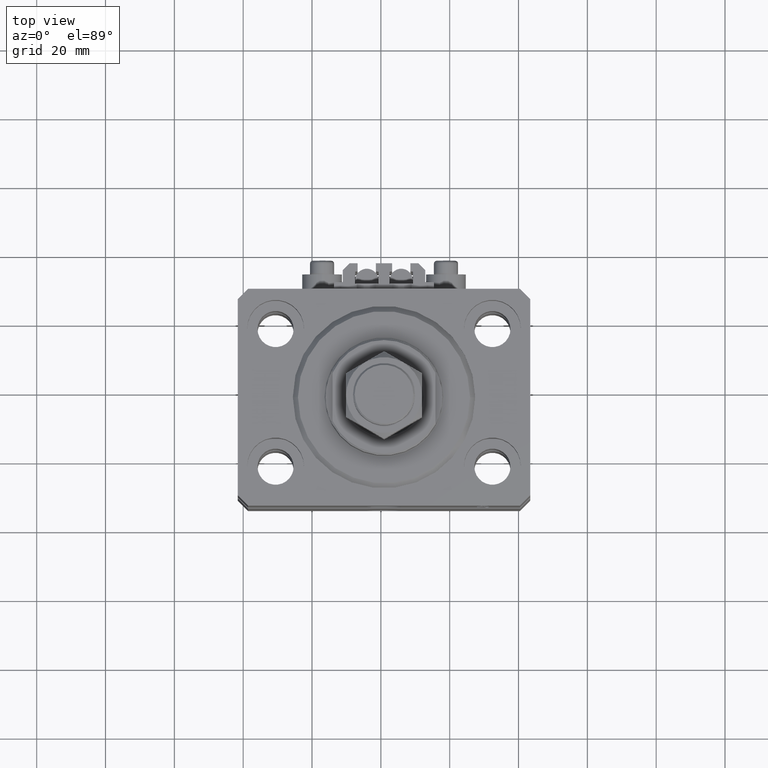
[diagram: clean part render]
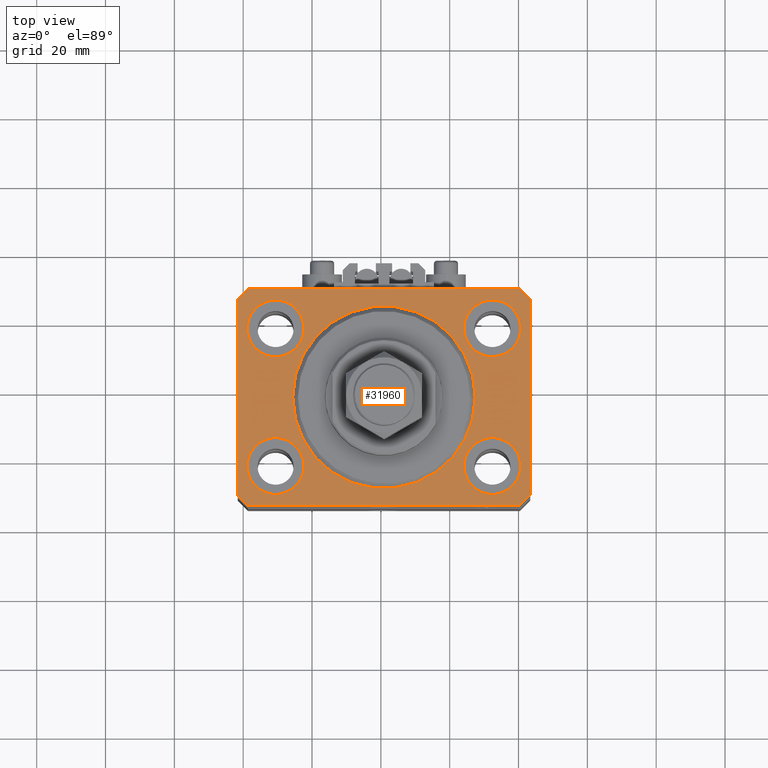
[diagram: same view with one face highlighted and labeled with its STEP entity id]
A machine part, top view. The second image highlights one B-rep face of the part: STEP entity #31960.
In plain terms, the highlighted planar face has unit normal (0, 0, 1).
Its self-contained STEP definition (entity closure, byte-faithful):
#4 = DIRECTION ( 'NONE',  ( 1.000000000000000000, 0.000000000000000000, 0.000000000000000000 ) ) ;
#102 = FACE_BOUND ( 'NONE', #21824, .T. ) ;
#229 = CARTESIAN_POINT ( 'NONE',  ( 0.000000000000000000, 0.000000000000000000, 0.000000000000000000 ) ) ;
#544 = EDGE_LOOP ( 'NONE', ( #50012, #26114, #37690, #29018, #2439, #38487, #44528, #14259 ) ) ;
#590 = DIRECTION ( 'NONE',  ( 0.000000000000000000, 0.000000000000000000, 1.000000000000000000 ) ) ;
#852 = DIRECTION ( 'NONE',  ( 0.000000000000000000, 0.000000000000000000, 1.000000000000000000 ) ) ;
#1429 = VERTEX_POINT ( 'NONE', #40886 ) ;
#1724 = CIRCLE ( 'NONE', #34062, 8.250000000000000000 ) ;
#1762 = DIRECTION ( 'NONE',  ( 8.886653596232072440E-15, 1.000000000000000000, 0.000000000000000000 ) ) ;
#1833 = CARTESIAN_POINT ( 'NONE',  ( -42.50000000000000000, -28.50000000000000000, 0.000000000000000000 ) ) ;
#2439 = ORIENTED_EDGE ( 'NONE', *, *, #10129, .T. ) ;
#2656 = AXIS2_PLACEMENT_3D ( 'NONE', #21051, #36499, #6104 ) ;
#2731 = CIRCLE ( 'NONE', #31047, 8.250000000000000000 ) ;
#2970 = CARTESIAN_POINT ( 'NONE',  ( -23.25000000000000000, -20.00000000000000000, 0.000000000000000000 ) ) ;
#3006 = CARTESIAN_POINT ( 'NONE',  ( 39.50000000000000711, -31.50000000000000000, 0.000000000000000000 ) ) ;
#3582 = ORIENTED_EDGE ( 'NONE', *, *, #33004, .F. ) ;
#3629 = LINE ( 'NONE', #7174, #23158 ) ;
#3878 = DIRECTION ( 'NONE',  ( 0.000000000000000000, -1.000000000000000000, 0.000000000000000000 ) ) ;
#4060 = VERTEX_POINT ( 'NONE', #4212 ) ;
#4117 = VERTEX_POINT ( 'NONE', #4705 ) ;
#4212 = CARTESIAN_POINT ( 'NONE',  ( 39.74999999999999289, -20.00000000000000000, 0.000000000000000000 ) ) ;
#4397 = FACE_BOUND ( 'NONE', #32833, .T. ) ;
#4518 = DIRECTION ( 'NONE',  ( -1.000000000000000000, 0.000000000000000000, 0.000000000000000000 ) ) ;
#4705 = CARTESIAN_POINT ( 'NONE',  ( 26.50000000000000355, 0.000000000000000000, 0.000000000000000000 ) ) ;
#5153 = CARTESIAN_POINT ( 'NONE',  ( -31.50000000000000000, 20.00000000000000000, 0.000000000000000000 ) ) ;
#5265 = CARTESIAN_POINT ( 'NONE',  ( 39.50000000000056843, 31.50000000000000000, 0.000000000000000000 ) ) ;
#5428 = EDGE_LOOP ( 'NONE', ( #29611, #44949 ) ) ;
#6104 = DIRECTION ( 'NONE',  ( 1.000000000000000000, 0.000000000000000000, 0.000000000000000000 ) ) ;
#6419 = ORIENTED_EDGE ( 'NONE', *, *, #37609, .F. ) ;
#6422 = VECTOR ( 'NONE', #3878, 1000.000000000000000 ) ;
#6805 = DIRECTION ( 'NONE',  ( 0.000000000000000000, 0.000000000000000000, 1.000000000000000000 ) ) ;
#6842 = DIRECTION ( 'NONE',  ( 0.000000000000000000, 0.000000000000000000, 1.000000000000000000 ) ) ;
#7117 = CIRCLE ( 'NONE', #48352, 8.249999999999992895 ) ;
#7174 = CARTESIAN_POINT ( 'NONE',  ( -39.50000000000000711, 31.50000000000000000, 0.000000000000000000 ) ) ;
#7291 = AXIS2_PLACEMENT_3D ( 'NONE', #14967, #23065, #7382 ) ;
#7350 = DIRECTION ( 'NONE',  ( 1.000000000000000000, 0.000000000000000000, 0.000000000000000000 ) ) ;
#7382 = DIRECTION ( 'NONE',  ( 1.000000000000000000, 0.000000000000000000, 0.000000000000000000 ) ) ;
#7962 = CARTESIAN_POINT ( 'NONE',  ( -39.75000000000000000, -20.00000000000000000, 0.000000000000000000 ) ) ;
#8363 = VECTOR ( 'NONE', #4, 1000.000000000000000 ) ;
#8373 = VERTEX_POINT ( 'NONE', #19844 ) ;
#8574 = ORIENTED_EDGE ( 'NONE', *, *, #38169, .F. ) ;
#9221 = DIRECTION ( 'NONE',  ( 1.000000000000000000, 0.000000000000000000, 0.000000000000000000 ) ) ;
#10129 = EDGE_CURVE ( 'NONE', #32668, #17274, #22790, .T. ) ;
#11377 = DIRECTION ( 'NONE',  ( 1.000000000000000000, 0.000000000000000000, 0.000000000000000000 ) ) ;
#11730 = CARTESIAN_POINT ( 'NONE',  ( -42.50000000000000000, 28.50000000000000000, 0.000000000000000000 ) ) ;
#11940 = DIRECTION ( 'NONE',  ( 1.000000000000000000, 0.000000000000000000, 0.000000000000000000 ) ) ;
#12124 = CARTESIAN_POINT ( 'NONE',  ( -39.50000000000000711, 31.50000000000000000, 0.000000000000000000 ) ) ;
#12670 = CARTESIAN_POINT ( 'NONE',  ( 31.50000000000000000, -20.00000000000000000, 0.000000000000000000 ) ) ;
#13266 = DIRECTION ( 'NONE',  ( -0.7071067811865356934, 0.7071067811865594521, 0.000000000000000000 ) ) ;
#13270 = VERTEX_POINT ( 'NONE', #42457 ) ;
#13405 = ORIENTED_EDGE ( 'NONE', *, *, #23661, .F. ) ;
#13610 = VERTEX_POINT ( 'NONE', #7962 ) ;
#13929 = CARTESIAN_POINT ( 'NONE',  ( 39.74999999999999289, 20.00000000000001066, 0.000000000000000000 ) ) ;
#14198 = VERTEX_POINT ( 'NONE', #2970 ) ;
#14259 = ORIENTED_EDGE ( 'NONE', *, *, #37822, .T. ) ;
#14753 = CIRCLE ( 'NONE', #2656, 8.249999999999992895 ) ;
#14967 = CARTESIAN_POINT ( 'NONE',  ( 0.000000000000000000, 0.000000000000000000, 0.000000000000000000 ) ) ;
#15491 = CARTESIAN_POINT ( 'NONE',  ( 23.25000000000000355, -20.00000000000000000, 0.000000000000000000 ) ) ;
#15537 = FACE_BOUND ( 'NONE', #5428, .T. ) ;
#15661 = CIRCLE ( 'NONE', #43978, 8.250000000000000000 ) ;
#15780 = PLANE ( 'NONE',  #21918 ) ;
#16076 = CIRCLE ( 'NONE', #44386, 26.50000000000000355 ) ;
#16905 = CIRCLE ( 'NONE', #27422, 8.249999999999992895 ) ;
#16991 = CARTESIAN_POINT ( 'NONE',  ( 42.50000000000051870, 28.49999999999995381, 0.000000000000000000 ) ) ;
#17193 = CARTESIAN_POINT ( 'NONE',  ( -31.50000000000000000, 20.00000000000000000, 0.000000000000000000 ) ) ;
#17274 = VERTEX_POINT ( 'NONE', #49700 ) ;
#17794 = LINE ( 'NONE', #43915, #31844 ) ;
#18248 = CARTESIAN_POINT ( 'NONE',  ( 39.50000000000056843, 31.50000000000000000, 0.000000000000000000 ) ) ;
#18691 = DIRECTION ( 'NONE',  ( 0.7071067811865483499, 0.7071067811865466846, 0.000000000000000000 ) ) ;
#19168 = AXIS2_PLACEMENT_3D ( 'NONE', #31196, #46617, #11940 ) ;
#19211 = DIRECTION ( 'NONE',  ( 0.000000000000000000, 0.000000000000000000, 1.000000000000000000 ) ) ;
#19385 = CARTESIAN_POINT ( 'NONE',  ( -23.25000000000000000, 20.00000000000000000, 0.000000000000000000 ) ) ;
#19844 = CARTESIAN_POINT ( 'NONE',  ( -42.50000000000000000, -28.50000000000000000, 0.000000000000000000 ) ) ;
#20280 = EDGE_CURVE ( 'NONE', #46014, #1429, #33738, .T. ) ;
#21051 = CARTESIAN_POINT ( 'NONE',  ( 31.50000000000000000, 20.00000000000001066, 0.000000000000000000 ) ) ;
#21700 = CIRCLE ( 'NONE', #19168, 8.249999999999992895 ) ;
#21824 = EDGE_LOOP ( 'NONE', ( #3582, #6419 ) ) ;
#21879 = CARTESIAN_POINT ( 'NONE',  ( 31.50000000000000000, -20.00000000000000000, 0.000000000000000000 ) ) ;
#21918 = AXIS2_PLACEMENT_3D ( 'NONE', #46662, #590, #24640 ) ;
#22147 = EDGE_CURVE ( 'NONE', #50007, #4060, #7117, .T. ) ;
#22432 = AXIS2_PLACEMENT_3D ( 'NONE', #5153, #852, #9221 ) ;
#22494 = DIRECTION ( 'NONE',  ( 1.000000000000000000, 0.000000000000000000, 0.000000000000000000 ) ) ;
#22790 = LINE ( 'NONE', #37736, #8363 ) ;
#23065 = DIRECTION ( 'NONE',  ( 0.000000000000000000, 0.000000000000000000, 1.000000000000000000 ) ) ;
#23115 = LINE ( 'NONE', #38568, #6422 ) ;
#23158 = VECTOR ( 'NONE', #38061, 1000.000000000000000 ) ;
#23661 = EDGE_CURVE ( 'NONE', #4117, #32414, #16076, .T. ) ;
#24640 = DIRECTION ( 'NONE',  ( 1.000000000000000000, 0.000000000000000000, -0.000000000000000000 ) ) ;
#25688 = ORIENTED_EDGE ( 'NONE', *, *, #20280, .F. ) ;
#25724 = DIRECTION ( 'NONE',  ( 0.000000000000000000, 0.000000000000000000, 1.000000000000000000 ) ) ;
#26114 = ORIENTED_EDGE ( 'NONE', *, *, #44126, .T. ) ;
#26184 = DIRECTION ( 'NONE',  ( 1.000000000000000000, 0.000000000000000000, 0.000000000000000000 ) ) ;
#26550 = LINE ( 'NONE', #3006, #33704 ) ;
#26686 = DIRECTION ( 'NONE',  ( 0.000000000000000000, 0.000000000000000000, 1.000000000000000000 ) ) ;
#26816 = VERTEX_POINT ( 'NONE', #11730 ) ;
#27245 = EDGE_CURVE ( 'NONE', #4060, #50007, #16905, .T. ) ;
#27422 = AXIS2_PLACEMENT_3D ( 'NONE', #12670, #6805, #22494 ) ;
#28312 = ORIENTED_EDGE ( 'NONE', *, *, #50045, .F. ) ;
#28838 = EDGE_CURVE ( 'NONE', #26816, #8373, #23115, .T. ) ;
#29018 = ORIENTED_EDGE ( 'NONE', *, *, #42352, .T. ) ;
#29242 = CARTESIAN_POINT ( 'NONE',  ( -39.50000000000000711, -31.50000000000000000, 0.000000000000000000 ) ) ;
#29309 = EDGE_CURVE ( 'NONE', #45336, #32887, #41000, .T. ) ;
#29611 = ORIENTED_EDGE ( 'NONE', *, *, #27245, .F. ) ;
#29923 = EDGE_CURVE ( 'NONE', #32414, #4117, #44490, .T. ) ;
#30989 = EDGE_LOOP ( 'NONE', ( #13405, #39160 ) ) ;
#30998 = FACE_BOUND ( 'NONE', #30989, .T. ) ;
#31047 = AXIS2_PLACEMENT_3D ( 'NONE', #33308, #25724, #48751 ) ;
#31196 = CARTESIAN_POINT ( 'NONE',  ( 31.50000000000000000, 20.00000000000001066, 0.000000000000000000 ) ) ;
#31844 = VECTOR ( 'NONE', #13266, 1000.000000000000114 ) ;
#31910 = DIRECTION ( 'NONE',  ( 0.000000000000000000, 0.000000000000000000, 1.000000000000000000 ) ) ;
#31960 = ADVANCED_FACE ( 'NONE', ( #102, #15537, #4397, #42888, #30998, #46422 ), #15780, .T. ) ;
#32123 = LINE ( 'NONE', #5265, #32811 ) ;
#32414 = VERTEX_POINT ( 'NONE', #39664 ) ;
#32668 = VERTEX_POINT ( 'NONE', #29242 ) ;
#32811 = VECTOR ( 'NONE', #4518, 1000.000000000000000 ) ;
#32833 = EDGE_LOOP ( 'NONE', ( #8574, #28312 ) ) ;
#32887 = VERTEX_POINT ( 'NONE', #16991 ) ;
#33004 = EDGE_CURVE ( 'NONE', #14198, #13610, #1724, .T. ) ;
#33308 = CARTESIAN_POINT ( 'NONE',  ( -31.50000000000000000, -20.00000000000000000, 0.000000000000000000 ) ) ;
#33704 = VECTOR ( 'NONE', #18691, 1000.000000000000000 ) ;
#33738 = CIRCLE ( 'NONE', #22432, 8.250000000000000000 ) ;
#34006 = CARTESIAN_POINT ( 'NONE',  ( 42.50000000000000711, -28.50000000000000355, 0.000000000000000000 ) ) ;
#34062 = AXIS2_PLACEMENT_3D ( 'NONE', #37983, #6842, #7350 ) ;
#35086 = VERTEX_POINT ( 'NONE', #18248 ) ;
#36445 = CARTESIAN_POINT ( 'NONE',  ( 42.50000000000000711, -28.50000000000000355, 0.000000000000000000 ) ) ;
#36499 = DIRECTION ( 'NONE',  ( 0.000000000000000000, 0.000000000000000000, 1.000000000000000000 ) ) ;
#36522 = LINE ( 'NONE', #1833, #46534 ) ;
#37609 = EDGE_CURVE ( 'NONE', #13610, #14198, #2731, .T. ) ;
#37690 = ORIENTED_EDGE ( 'NONE', *, *, #28838, .T. ) ;
#37736 = CARTESIAN_POINT ( 'NONE',  ( -39.50000000000000711, -31.50000000000000000, 0.000000000000000000 ) ) ;
#37822 = EDGE_CURVE ( 'NONE', #32887, #35086, #17794, .T. ) ;
#37983 = CARTESIAN_POINT ( 'NONE',  ( -31.50000000000000000, -20.00000000000000000, 0.000000000000000000 ) ) ;
#38061 = DIRECTION ( 'NONE',  ( -0.7071067811865471286, -0.7071067811865479058, 0.000000000000000000 ) ) ;
#38169 = EDGE_CURVE ( 'NONE', #47074, #13270, #14753, .T. ) ;
#38214 = EDGE_LOOP ( 'NONE', ( #25688, #46141 ) ) ;
#38487 = ORIENTED_EDGE ( 'NONE', *, *, #45718, .T. ) ;
#38568 = CARTESIAN_POINT ( 'NONE',  ( -42.50000000000000000, 28.50000000000000000, 0.000000000000000000 ) ) ;
#38813 = VECTOR ( 'NONE', #1762, 1000.000000000000000 ) ;
#39160 = ORIENTED_EDGE ( 'NONE', *, *, #29923, .F. ) ;
#39664 = CARTESIAN_POINT ( 'NONE',  ( -26.50000000000000355, 3.245314017740486554E-15, 0.000000000000000000 ) ) ;
#40574 = EDGE_CURVE ( 'NONE', #1429, #46014, #15661, .T. ) ;
#40886 = CARTESIAN_POINT ( 'NONE',  ( -39.75000000000000000, 20.00000000000000000, 0.000000000000000000 ) ) ;
#41000 = LINE ( 'NONE', #36445, #38813 ) ;
#42352 = EDGE_CURVE ( 'NONE', #8373, #32668, #36522, .T. ) ;
#42457 = CARTESIAN_POINT ( 'NONE',  ( 23.25000000000000355, 20.00000000000001066, 0.000000000000000000 ) ) ;
#42888 = FACE_BOUND ( 'NONE', #38214, .T. ) ;
#43378 = DIRECTION ( 'NONE',  ( 0.7071067811865471286, -0.7071067811865479058, 0.000000000000000000 ) ) ;
#43791 = EDGE_CURVE ( 'NONE', #35086, #47319, #32123, .T. ) ;
#43915 = CARTESIAN_POINT ( 'NONE',  ( 42.50000000000051870, 28.49999999999995381, 0.000000000000000000 ) ) ;
#43978 = AXIS2_PLACEMENT_3D ( 'NONE', #17193, #31910, #47076 ) ;
#44126 = EDGE_CURVE ( 'NONE', #47319, #26816, #3629, .T. ) ;
#44386 = AXIS2_PLACEMENT_3D ( 'NONE', #229, #19211, #11377 ) ;
#44490 = CIRCLE ( 'NONE', #7291, 26.50000000000000355 ) ;
#44528 = ORIENTED_EDGE ( 'NONE', *, *, #29309, .T. ) ;
#44949 = ORIENTED_EDGE ( 'NONE', *, *, #22147, .F. ) ;
#45336 = VERTEX_POINT ( 'NONE', #34006 ) ;
#45718 = EDGE_CURVE ( 'NONE', #17274, #45336, #26550, .T. ) ;
#46014 = VERTEX_POINT ( 'NONE', #19385 ) ;
#46141 = ORIENTED_EDGE ( 'NONE', *, *, #40574, .F. ) ;
#46422 = FACE_OUTER_BOUND ( 'NONE', #544, .T. ) ;
#46534 = VECTOR ( 'NONE', #43378, 1000.000000000000000 ) ;
#46617 = DIRECTION ( 'NONE',  ( 0.000000000000000000, 0.000000000000000000, 1.000000000000000000 ) ) ;
#46662 = CARTESIAN_POINT ( 'NONE',  ( 0.000000000000000000, 0.000000000000000000, 0.000000000000000000 ) ) ;
#47074 = VERTEX_POINT ( 'NONE', #13929 ) ;
#47076 = DIRECTION ( 'NONE',  ( 1.000000000000000000, 0.000000000000000000, 0.000000000000000000 ) ) ;
#47319 = VERTEX_POINT ( 'NONE', #12124 ) ;
#48352 = AXIS2_PLACEMENT_3D ( 'NONE', #21879, #26686, #26184 ) ;
#48751 = DIRECTION ( 'NONE',  ( 1.000000000000000000, 0.000000000000000000, 0.000000000000000000 ) ) ;
#49700 = CARTESIAN_POINT ( 'NONE',  ( 39.50000000000000711, -31.50000000000000000, 0.000000000000000000 ) ) ;
#50007 = VERTEX_POINT ( 'NONE', #15491 ) ;
#50012 = ORIENTED_EDGE ( 'NONE', *, *, #43791, .T. ) ;
#50045 = EDGE_CURVE ( 'NONE', #13270, #47074, #21700, .T. ) ;